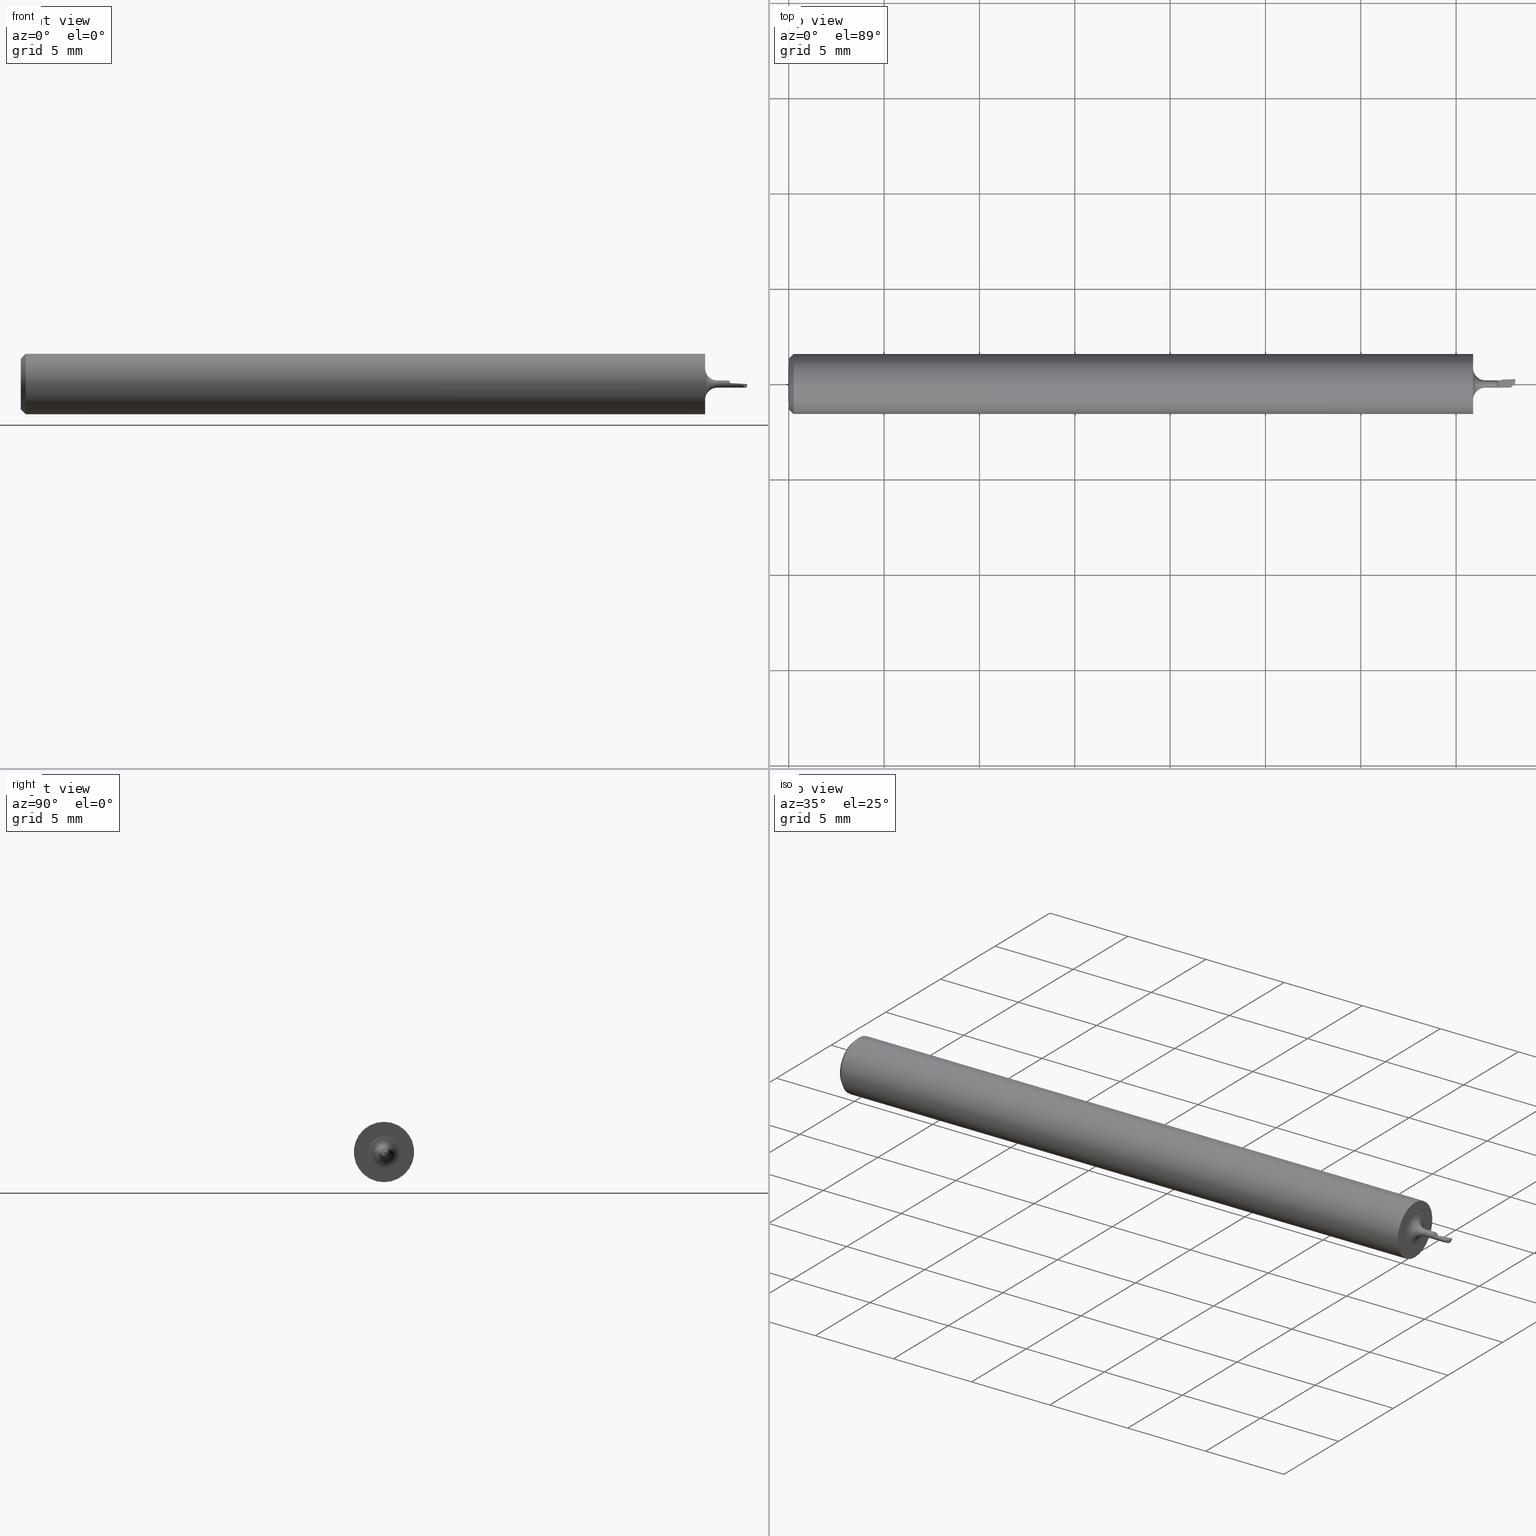
[diagram: canonical four-view strip — front | top / right | iso, engineering-drawing reading convention]
A machine part, canonical four-view strip (front | top / right | iso — engineering-drawing reading convention). The complete STEP part file that produces these views, byte-faithful:
ISO-10303-21;
HEADER;
FILE_DESCRIPTION (( 'STEP AP203' ),
    '1' );
FILE_NAME ('216294-HB020062.STEP',
    '2024-07-23T22:55:27',
    ( '' ),
    ( '' ),
    'SwSTEP 2.0',
    'SolidWorks 2024',
    '' );
FILE_SCHEMA (( 'CONFIG_CONTROL_DESIGN' ));
ENDSEC;

DATA;
#1 = PERSON_AND_ORGANIZATION ( #126, #152 ) ;
#2 = CARTESIAN_POINT ( 'NONE',  ( 1.485392324626189531, 0.009608835772461002747, -0.001031158699543181095 ) ) ;
#3 = PLANE ( 'NONE',  #57 ) ;
#4 = CARTESIAN_POINT ( 'NONE',  ( 1.465401910229241489, -0.008033876572719308301, 0.001976404837334403385 ) ) ;
#5 = CARTESIAN_POINT ( 'NONE',  ( 1.476757864376269325, -0.02164197671125470124, -0.04999999999999998890 ) ) ;
#6 = VERTEX_POINT ( 'NONE', #309 ) ;
#7 = DATE_TIME_ROLE ( 'creation_date' ) ;
#8 = AXIS2_PLACEMENT_3D ( 'NONE', #686, #363, #313 ) ;
#9 = CARTESIAN_POINT ( 'NONE',  ( 1.470000000000000417, 0.000000000000000000, 0.000000000000000000 ) ) ;
#10 = ORIENTED_EDGE ( 'NONE', *, *, #630, .F. ) ;
#11 =( BOUNDED_CURVE ( )  B_SPLINE_CURVE ( 3, ( #424, #48, #206, #263 ),
 .UNSPECIFIED., .F., .T. ) 
 B_SPLINE_CURVE_WITH_KNOTS ( ( 4, 4 ),
 ( 0.0004601367519430970762, 0.0005001029806921419591 ),
 .UNSPECIFIED. ) 
 CURVE ( )  GEOMETRIC_REPRESENTATION_ITEM ( )  RATIONAL_B_SPLINE_CURVE ( ( 0.9655502004610314604, 0.9655577982090070011, 0.9655661930841653584, 0.9655753850865065324 ) ) 
 REPRESENTATION_ITEM ( '' )  );
#12 = EDGE_CURVE ( 'NONE', #493, #339, #651, .T. ) ;
#13 = CARTESIAN_POINT ( 'NONE',  ( 1.470000000000000417, 0.007499999999999999722, 0.000000000000000000 ) ) ;
#14 = ADVANCED_FACE ( 'NONE', ( #368 ), #201, .T. ) ;
#15 = DIRECTION ( 'NONE',  ( -1.000000000000000000, -0.000000000000000000, -0.000000000000000000 ) ) ;
#16 = ORIENTED_EDGE ( 'NONE', *, *, #46, .F. ) ;
#17 = CARTESIAN_POINT ( 'NONE',  ( 1.465462116480122479, -0.007287318264388198928, 0.001773412674517008038 ) ) ;
#18 = AXIS2_PLACEMENT_3D ( 'NONE', #338, #134, #547 ) ;
#19 = AXIS2_PLACEMENT_3D ( 'NONE', #68, #583, #113 ) ;
#20 = DIRECTION ( 'NONE',  ( 0.000000000000000000, 0.000000000000000000, -1.000000000000000000 ) ) ;
#21 = ORIENTED_EDGE ( 'NONE', *, *, #521, .F. ) ;
#22 = LINE ( 'NONE', #534, #310 ) ;
#23 = CC_DESIGN_DATE_AND_TIME_ASSIGNMENT ( #639, #7, ( #584 ) ) ;
#24 = ADVANCED_FACE ( 'NONE', ( #259 ), #3, .F. ) ;
#25 = CARTESIAN_POINT ( 'NONE',  ( 1.490913009497756070, -0.007486831589767370572, 0.0004442440175002985167 ) ) ;
#26 = VERTEX_POINT ( 'NONE', #149 ) ;
#27 = CARTESIAN_POINT ( 'NONE',  ( 1.465462116480122479, -0.007287318264388198928, 0.001773412674517008038 ) ) ;
#28 = CARTESIAN_POINT ( 'NONE',  ( 1.500000000000000000, -0.03809952085550569884, -0.004440993804172945099 ) ) ;
#29 = ORIENTED_EDGE ( 'NONE', *, *, #350, .T. ) ;
#30 = VECTOR ( 'NONE', #236, 39.37007874015748143 ) ;
#31 = CARTESIAN_POINT ( 'NONE',  ( 1.455555555555555491, 0.1164702842056755949, -0.02382379700347562329 ) ) ;
#32 = AXIS2_PLACEMENT_3D ( 'NONE', #540, #290, #384 ) ;
#33 = ORIENTED_EDGE ( 'NONE', *, *, #433, .T. ) ;
#34 = EDGE_CURVE ( 'NONE', #167, #346, #171, .T. ) ;
#35 = DIRECTION ( 'NONE',  ( -0.7071067811865473507, -0.7071067811865475727, 0.000000000000000000 ) ) ;
#36 = ORIENTED_EDGE ( 'NONE', *, *, #46, .T. ) ;
#37 = DIRECTION ( 'NONE',  ( 1.000000000000000000, 0.000000000000000000, 0.000000000000000000 ) ) ;
#38 = PRODUCT_DEFINITION_SHAPE ( 'NONE', 'NONE',  #584 ) ;
#39 = CYLINDRICAL_SURFACE ( 'NONE', #469, 0.06234999999999997489 ) ;
#40 = ORIENTED_EDGE ( 'NONE', *, *, #330, .T. ) ;
#41 = CARTESIAN_POINT ( 'NONE',  ( 0.000000000000000000, 0.000000000000000000, 0.000000000000000000 ) ) ;
#42 = CARTESIAN_POINT ( 'NONE',  ( 1.470000000000000195, 0.002313938800059815466, -0.007500000000000064775 ) ) ;
#43 = CARTESIAN_POINT ( 'NONE',  ( 1.438000000000000389, 0.000000000000000000, 0.000000000000000000 ) ) ;
#44 = VECTOR ( 'NONE', #633, 39.37007874015748854 ) ;
#45 = DIRECTION ( 'NONE',  ( 0.000000000000000000, 0.000000000000000000, 1.000000000000000000 ) ) ;
#46 = EDGE_CURVE ( 'NONE', #500, #400, #11, .T. ) ;
#47 = CARTESIAN_POINT ( 'NONE',  ( 1.470000000000000195, 0.006931085055628647545, -0.004255015262047913763 ) ) ;
#48 = CARTESIAN_POINT ( 'NONE',  ( 1.470000000000000417, 0.007833377334130911182, -0.001740700570957515831 ) ) ;
#49 = EDGE_CURVE ( 'NONE', #26, #93, #581, .T. ) ;
#50 = CALENDAR_DATE ( 2024, 23, 7 ) ;
#51 = CARTESIAN_POINT ( 'NONE',  ( 1.499614030258607844, 0.008498927188251336265, -0.003018900604069763537 ) ) ;
#52 = PLANE ( 'NONE',  #65 ) ;
#53 = CARTESIAN_POINT ( 'NONE',  ( 1.475964196004432738, 0.002684687636287738481, -0.007500000000000064775 ) ) ;
#54 = ORIENTED_EDGE ( 'NONE', *, *, #507, .F. ) ;
#55 = PERSON_AND_ORGANIZATION_ROLE ( 'creator' ) ;
#56 = LOCAL_TIME ( 15, 55, 27.00000000000000000, #360 ) ;
#57 = AXIS2_PLACEMENT_3D ( 'NONE', #411, #365, #371 ) ;
#58 = FACE_OUTER_BOUND ( 'NONE', #255, .T. ) ;
#59 = ORIENTED_EDGE ( 'NONE', *, *, #480, .F. ) ;
#60 = CARTESIAN_POINT ( 'NONE',  ( 1.465819462631971160, -0.002460218353532549716, 0.0004686470636079747773 ) ) ;
#61 = CARTESIAN_POINT ( 'NONE',  ( 1.499614030258607844, 0.008498927188251336265, -0.003018900604069763537 ) ) ;
#62 = ORIENTED_EDGE ( 'NONE', *, *, #155, .F. ) ;
#63 = CARTESIAN_POINT ( 'NONE',  ( 0.01000000000000000021, 7.635672792683748212E-18, -0.06235000000000000264 ) ) ;
#64 = ORIENTED_EDGE ( 'NONE', *, *, #34, .F. ) ;
#65 = AXIS2_PLACEMENT_3D ( 'NONE', #13, #329, #176 ) ;
#66 = B_SPLINE_CURVE_WITH_KNOTS ( 'NONE', 3,
 ( #690, #367, #617, #514 ),
 .UNSPECIFIED., .F., .F.,
 ( 4, 4 ),
 ( 0.01286565071342295717, 1.000000000000000000 ),
 .UNSPECIFIED. ) ;
#67 = DESIGN_CONTEXT ( 'detailed design', #646, 'design' ) ;
#68 = CARTESIAN_POINT ( 'NONE',  ( 1.470000000000000195, 0.000000000000000000, 0.000000000000000000 ) ) ;
#69 = VERTEX_POINT ( 'NONE', #314 ) ;
#70 = ADVANCED_FACE ( 'NONE', ( #520 ), #52, .T. ) ;
#71 = FACE_OUTER_BOUND ( 'NONE', #649, .T. ) ;
#72 = ORIENTED_EDGE ( 'NONE', *, *, #190, .T. ) ;
#73 = CARTESIAN_POINT ( 'NONE',  ( 1.493085052227302922, 0.009954011561819450793, -0.0005054987647909147926 ) ) ;
#74 = FACE_OUTER_BOUND ( 'NONE', #548, .T. ) ;
#75 = ORIENTED_EDGE ( 'NONE', *, *, #190, .F. ) ;
#76 = ADVANCED_FACE ( 'NONE', ( #642 ), #120, .T. ) ;
#77 = CARTESIAN_POINT ( 'NONE',  ( 1.462228035653762026, -0.002706506877328939114, 0.007189974245801728815 ) ) ;
#78 = AXIS2_PLACEMENT_3D ( 'NONE', #671, #555, #233 ) ;
#79 = CARTESIAN_POINT ( 'NONE',  ( 1.499910995043635342, 0.001511153956110369368, -0.0001037729535355350990 ) ) ;
#80 = ORIENTED_EDGE ( 'NONE', *, *, #244, .F. ) ;
#81 = CARTESIAN_POINT ( 'NONE',  ( 1.459999999999999520, -0.005344669089070627419, 0.01199690355450601029 ) ) ;
#82 = CARTESIAN_POINT ( 'NONE',  ( 1.498399841087523887, -1.067128122525102820E-17, -0.007500000000000064775 ) ) ;
#83 = ORIENTED_EDGE ( 'NONE', *, *, #414, .T. ) ;
#84 = CARTESIAN_POINT ( 'NONE',  ( 1.461612290400543746, 0.001181759715680660459, 0.007412294273724921896 ) ) ;
#85 = DIRECTION ( 'NONE',  ( 0.1220122463319280454, 0.1220122463319280870, 0.9850005195379716305 ) ) ;
#86 = ORIENTED_EDGE ( 'NONE', *, *, #87, .F. ) ;
#87 = EDGE_CURVE ( 'NONE', #454, #173, #482, .T. ) ;
#88 = AXIS2_PLACEMENT_3D ( 'NONE', #609, #89, #348 ) ;
#89 = DIRECTION ( 'NONE',  ( 1.000000000000000000, 0.000000000000000000, 0.000000000000000000 ) ) ;
#90 = VECTOR ( 'NONE', #332, 39.37007874015748143 ) ;
#91 = VERTEX_POINT ( 'NONE', #162 ) ;
#92 = CARTESIAN_POINT ( 'NONE',  ( 0.000000000000000000, 7.635672792683743590E-18, -0.06234999999999997489 ) ) ;
#93 = VERTEX_POINT ( 'NONE', #375 ) ;
#94 = CARTESIAN_POINT ( 'NONE',  ( 1.465577171139883284, 0.007648788330625174055, -0.0003232386512158484421 ) ) ;
#95 = DIRECTION ( 'NONE',  ( -1.000000000000000000, -0.000000000000000000, -0.000000000000000000 ) ) ;
#96 = ORIENTED_EDGE ( 'NONE', *, *, #227, .F. ) ;
#97 = APPLICATION_PROTOCOL_DEFINITION ( 'international standard', 'config_control_design', 1994, #646 ) ;
#98 = EDGE_CURVE ( 'NONE', #192, #421, #388, .T. ) ;
#99 = DIRECTION ( 'NONE',  ( 0.000000000000000000, 0.000000000000000000, 1.000000000000000000 ) ) ;
#100 = CC_DESIGN_SECURITY_CLASSIFICATION ( #429, ( #676 ) ) ;
#101 = CARTESIAN_POINT ( 'NONE',  ( 1.469999999999999973, 0.008862374418960589431, -0.001945219099260210712 ) ) ;
#102 = ORIENTED_EDGE ( 'NONE', *, *, #594, .T. ) ;
#103 = PERSON_AND_ORGANIZATION_ROLE ( 'classification_officer' ) ;
#104 = CARTESIAN_POINT ( 'NONE',  ( 1.470000000000000195, 0.006931085055628647545, -0.004255015262047913763 ) ) ;
#105 = COORDINATED_UNIVERSAL_TIME_OFFSET ( 8, 0, .BEHIND. ) ;
#106 = CARTESIAN_POINT ( 'NONE',  ( 1.499937302052009036, 0.004424331407838361270, -9.657286540992938333E-05 ) ) ;
#107 = ORIENTED_EDGE ( 'NONE', *, *, #137, .F. ) ;
#108 = APPROVAL_DATE_TIME ( #567, #550 ) ;
#109 = AXIS2_PLACEMENT_3D ( 'NONE', #41, #347, #45 ) ;
#110 = DIRECTION ( 'NONE',  ( 0.000000000000000000, 0.000000000000000000, 1.000000000000000000 ) ) ;
#111 = CARTESIAN_POINT ( 'NONE',  ( 1.500000000000000222, 0.01025000000000000043, 0.000000000000000000 ) ) ;
#112 = DIRECTION ( 'NONE',  ( 1.000000000000000000, 0.000000000000000000, 0.000000000000000000 ) ) ;
#113 = DIRECTION ( 'NONE',  ( 0.000000000000000000, -3.552713678800500929E-15, -1.000000000000000000 ) ) ;
#114 = ORIENTED_EDGE ( 'NONE', *, *, #137, .T. ) ;
#115 = DIRECTION ( 'NONE',  ( -0.7071067811865476838, 0.7071067811865474617, 0.000000000000000000 ) ) ;
#116 = ADVANCED_FACE ( 'NONE', ( #74 ), #506, .T. ) ;
#117 = ORIENTED_EDGE ( 'NONE', *, *, #470, .F. ) ;
#118 = DIRECTION ( 'NONE',  ( -1.000000000000000000, -0.000000000000000000, -0.000000000000000000 ) ) ;
#119 = ORIENTED_EDGE ( 'NONE', *, *, #155, .T. ) ;
#120 = CYLINDRICAL_SURFACE ( 'NONE', #494, 0.007500000000000033550 ) ;
#121 = ORIENTED_EDGE ( 'NONE', *, *, #488, .F. ) ;
#122 = CARTESIAN_POINT ( 'NONE',  ( 1.463480798353348655, -0.005494129391781303953, 0.005369865115502046003 ) ) ;
#123 = CARTESIAN_POINT ( 'NONE',  ( 1.322222222222222854, 0.04677834125300219664, -0.1029325764629645257 ) ) ;
#124 = ORIENTED_EDGE ( 'NONE', *, *, #622, .T. ) ;
#125 = CARTESIAN_POINT ( 'NONE',  ( 1.466181130951546896, 0.002396478728146690575, -0.0007274565395656179025 ) ) ;
#126 = PERSON ( 'UNSPECIFIED', 'UNSPECIFIED', 'UNSPECIFIED', ('UNSPECIFIED'), ('UNSPECIFIED'), ('UNSPECIFIED') ) ;
#127 = CARTESIAN_POINT ( 'NONE',  ( 1.490913009497756070, -0.007486831589767370572, 0.0004442440175002985167 ) ) ;
#128 = ORIENTED_EDGE ( 'NONE', *, *, #340, .T. ) ;
#129 = LENGTH_MEASURE_WITH_UNIT ( LENGTH_MEASURE( 0.02539999999999999897 ), #407 );
#130 = LINE ( 'NONE', #551, #140 ) ;
#131 = ADVANCED_FACE ( 'NONE', ( #652 ), #389, .F. ) ;
#132 = ORIENTED_EDGE ( 'NONE', *, *, #330, .F. ) ;
#133 = CARTESIAN_POINT ( 'NONE',  ( 1.461699344662932276, -2.764668663448731705E-06, 0.007500033956675822462 ) ) ;
#134 = DIRECTION ( 'NONE',  ( -1.000000000000000000, -0.000000000000000000, -0.000000000000000000 ) ) ;
#135 = B_SPLINE_CURVE_WITH_KNOTS ( 'NONE', 3,
 ( #373, #641, #439, #73, #164, #2, #216, #231, #495, #426 ),
 .UNSPECIFIED., .F., .F.,
 ( 4, 3, 3, 4 ),
 ( 6.962584633683147816E-18, 0.0001762687547314360260, 0.0004703390477958491580, 0.0007644307739226764578 ),
 .UNSPECIFIED. ) ;
#136 = ORIENTED_EDGE ( 'NONE', *, *, #585, .T. ) ;
#137 = EDGE_CURVE ( 'NONE', #421, #203, #246, .T. ) ;
#138 = CARTESIAN_POINT ( 'NONE',  ( 1.463130191196076790, 0.006460609429123629829, 0.003816459031954702683 ) ) ;
#139 = DIMENSIONAL_EXPONENTS ( 1.000000000000000000, 0.000000000000000000, 0.000000000000000000, 0.000000000000000000, 0.000000000000000000, 0.000000000000000000, 0.000000000000000000 ) ;
#140 = VECTOR ( 'NONE', #85, 39.37007874015748143 ) ;
#141 = CARTESIAN_POINT ( 'NONE',  ( 1.366666666666667584, -0.02732453381319412122, 0.02966470309875475497 ) ) ;
#142 = EDGE_LOOP ( 'NONE', ( #200, #349, #170, #180 ) ) ;
#143 = CARTESIAN_POINT ( 'NONE',  ( 1.490913009497756070, -0.007486831589767370572, 0.0004442440175002985167 ) ) ;
#144 = CARTESIAN_POINT ( 'NONE',  ( 1.499220264841371719, 0.005482785717875401921, -0.006011376337650196564 ) ) ;
#145 = ADVANCED_FACE ( 'NONE', ( #378 ), #588, .F. ) ;
#146 = DIRECTION ( 'NONE',  ( 0.000000000000000000, 0.000000000000000000, 1.000000000000000000 ) ) ;
#147 = B_SPLINE_CURVE_WITH_KNOTS ( 'NONE', 3,
 ( #17, #274, #122, #77, #341, #218 ),
 .UNSPECIFIED., .F., .F.,
 ( 4, 2, 4 ),
 ( 0.000000000000000000, 0.2108582846577519709, 0.4217165693155039419 ),
 .UNSPECIFIED. ) ;
#148 = FACE_OUTER_BOUND ( 'NONE', #317, .T. ) ;
#149 = CARTESIAN_POINT ( 'NONE',  ( 1.413000000000000478, 0.000000000000000000, 0.03250000000000000111 ) ) ;
#150 = COORDINATED_UNIVERSAL_TIME_OFFSET ( 8, 0, .BEHIND. ) ;
#151 = CARTESIAN_POINT ( 'NONE',  ( 1.470000000000000195, 0.002313938800059815466, -0.007500000000000064775 ) ) ;
#152 = ORGANIZATION ( 'UNSPECIFIED', 'UNSPECIFIED', '' ) ;
#153 = CARTESIAN_POINT ( 'NONE',  ( 1.500000000000000222, 0.01025000000000000043, 0.000000000000000000 ) ) ;
#154 = CARTESIAN_POINT ( 'NONE',  ( 1.489999919576768139, -0.07589461500422528539, -0.07827033388365021993 ) ) ;
#155 = EDGE_CURVE ( 'NONE', #173, #621, #526, .T. ) ;
#156 = CARTESIAN_POINT ( 'NONE',  ( 1.499855164178076183, 0.009594919683456390805, -0.001132990372411467285 ) ) ;
#157 = DATE_TIME_ROLE ( 'classification_date' ) ;
#158 = CARTESIAN_POINT ( 'NONE',  ( 1.500000000000000222, 0.01025000000000000043, 0.000000000000000000 ) ) ;
#159 = ORIENTED_EDGE ( 'NONE', *, *, #659, .F. ) ;
#160 = CALENDAR_DATE ( 2024, 23, 7 ) ;
#161 = CARTESIAN_POINT ( 'NONE',  ( 1.466633238878380485, 0.008504308046681357050, -0.002083894731669192445 ) ) ;
#162 = CARTESIAN_POINT ( 'NONE',  ( 0.000000000000000000, 7.023349393110068342E-18, 0.05234999999999996600 ) ) ;
#163 = CC_DESIGN_APPROVAL ( #359, ( #676 ) ) ;
#164 = CARTESIAN_POINT ( 'NONE',  ( 1.489239127260343576, 0.009784989192643761199, -0.0007765362807769304399 ) ) ;
#165 = DIRECTION ( 'NONE',  ( 1.000000000000000000, 0.000000000000000000, -0.000000000000000000 ) ) ;
#166 = ADVANCED_FACE ( 'NONE', ( #485 ), #491, .T. ) ;
#167 = VERTEX_POINT ( 'NONE', #61 ) ;
#168 = EDGE_CURVE ( 'NONE', #406, #621, #593, .T. ) ;
#169 = DIRECTION ( 'NONE',  ( -1.000000000000000000, -0.000000000000000000, -0.000000000000000000 ) ) ;
#170 = ORIENTED_EDGE ( 'NONE', *, *, #12, .T. ) ;
#171 = B_SPLINE_CURVE_WITH_KNOTS ( 'NONE', 3,
 ( #691, #571, #618, #679, #528, #475, #156, #358, #566, #214 ),
 .UNSPECIFIED., .F., .F.,
 ( 4, 3, 3, 4 ),
 ( 0.000000000000000000, 2.229648882093421169E-05, 5.574131599296864214E-05, 8.918623473326377422E-05 ),
 .UNSPECIFIED. ) ;
#172 = DIRECTION ( 'NONE',  ( 0.000000000000000000, 0.000000000000000000, 1.000000000000000000 ) ) ;
#173 = VERTEX_POINT ( 'NONE', #63 ) ;
#174 = APPROVAL_PERSON_ORGANIZATION ( #366, #392, #473 ) ;
#175 = AXIS2_PLACEMENT_3D ( 'NONE', #634, #518, #464 ) ;
#176 = DIRECTION ( 'NONE',  ( -0.000000000000000000, 0.000000000000000000, 1.000000000000000000 ) ) ;
#177 = EDGE_LOOP ( 'NONE', ( #132, #234, #159, #221 ) ) ;
#178 = CARTESIAN_POINT ( 'NONE',  ( 1.438000000000000389, 9.184850993605228864E-19, -0.007500000000000064775 ) ) ;
#179 = CARTESIAN_POINT ( 'NONE',  ( 1.322222222222222854, 0.007549763325608993027, -0.03760714013475525280 ) ) ;
#180 = ORIENTED_EDGE ( 'NONE', *, *, #264, .F. ) ;
#181 = DIRECTION ( 'NONE',  ( -1.000000000000000000, -0.000000000000000000, -0.000000000000000000 ) ) ;
#182 = DIRECTION ( 'NONE',  ( 0.000000000000000000, -0.6414496315691530226, -0.7671651518153036475 ) ) ;
#183 = ORIENTED_EDGE ( 'NONE', *, *, #244, .T. ) ;
#184 = DIRECTION ( 'NONE',  ( -0.008726535498369596133, -0.9999619230641714207, 0.000000000000000000 ) ) ;
#185 = MANIFOLD_SOLID_BREP ( 'Front Angle', #537 ) ;
#186 = CARTESIAN_POINT ( 'NONE',  ( 1.479199920543762037, -0.01919992054376204460, -0.007500000000000064775 ) ) ;
#187 = ORIENTED_EDGE ( 'NONE', *, *, #637, .T. ) ;
#188 = CC_DESIGN_PERSON_AND_ORGANIZATION_ASSIGNMENT ( #466, #55, ( #676 ) ) ;
#189 = DIRECTION ( 'NONE',  ( 0.000000000000000000, 0.000000000000000000, 1.000000000000000000 ) ) ;
#190 = EDGE_CURVE ( 'NONE', #203, #493, #282, .T. ) ;
#191 = CARTESIAN_POINT ( 'NONE',  ( 1.466542643626486342, 0.007277478258368754761, -0.001813369846162280440 ) ) ;
#192 = VERTEX_POINT ( 'NONE', #431 ) ;
#193 = PERSON_AND_ORGANIZATION ( #126, #152 ) ;
#194 = CARTESIAN_POINT ( 'NONE',  ( 1.366666666666667140, -0.05864907454228218686, 0.1034078646039432170 ) ) ;
#195 = ORIENTED_EDGE ( 'NONE', *, *, #470, .T. ) ;
#196 = CARTESIAN_POINT ( 'NONE',  ( 1.461975344123043419, 0.004511434111019693369, 0.006110564703911905080 ) ) ;
#197 = CIRCLE ( 'NONE', #230, 0.06234999999999997489 ) ;
#198 = CARTESIAN_POINT ( 'NONE',  ( 1.470000000000000195, 0.006931085055628647545, -0.004255015262047913763 ) ) ;
#199 =( BOUNDED_CURVE ( )  B_SPLINE_CURVE ( 2, ( #143, #561, #680 ),
 .UNSPECIFIED., .F., .F. ) 
 B_SPLINE_CURVE_WITH_KNOTS ( ( 3, 3 ),
 ( 0.05295792601040268804, 0.1955746382368546699 ),
 .UNSPECIFIED. ) 
 CURVE ( )  GEOMETRIC_REPRESENTATION_ITEM ( )  RATIONAL_B_SPLINE_CURVE ( ( 0.9781178683772575599, 0.9672548631244314299, 0.9642543720173838429 ) ) 
 REPRESENTATION_ITEM ( '' )  );
#200 = ORIENTED_EDGE ( 'NONE', *, *, #585, .F. ) ;
#201 = B_SPLINE_SURFACE_WITH_KNOTS ( 'NONE', 1, 3, ( 
 ( #153, #418, #515, #415 ),
 ( #270, #563, #472, #625 ) ),
 .UNSPECIFIED., .F., .F., .F.,
 ( 2, 2 ),
 ( 4, 4 ),
 ( 0.000000000000000000, 1.000000000000000000 ),
 ( 0.000000000000000000, 1.000000000000000000 ),
 .UNSPECIFIED. ) ;
#202 = CARTESIAN_POINT ( 'NONE',  ( 1.495314523274111185, 0.003773362478853010352, -0.007500000000000069111 ) ) ;
#203 = VERTEX_POINT ( 'NONE', #279 ) ;
#204 = CARTESIAN_POINT ( 'NONE',  ( 1.463867991859787443, 0.007068999605444846457, 0.002562148954611527182 ) ) ;
#205 = CARTESIAN_POINT ( 'NONE',  ( 1.470000000000000417, 0.000000000000000000, 0.000000000000000000 ) ) ;
#206 = CARTESIAN_POINT ( 'NONE',  ( 1.470000000000000417, 0.008347796533325351973, -0.001843364884662992932 ) ) ;
#207 = APPROVAL_STATUS ( 'not_yet_approved' ) ;
#208 = ADVANCED_FACE ( 'NONE', ( #644 ), #478, .F. ) ;
#209 = CARTESIAN_POINT ( 'NONE',  ( 1.500000000000000222, 0.01025000000000000043, 0.000000000000000000 ) ) ;
#210 = VECTOR ( 'NONE', #184, 39.37007874015748854 ) ;
#211 = ORIENTED_EDGE ( 'NONE', *, *, #334, .F. ) ;
#212 = DATE_AND_TIME ( #50, #374 ) ;
#213 = LINE ( 'NONE', #104, #362 ) ;
#214 = CARTESIAN_POINT ( 'NONE',  ( 1.500000000000000222, 0.01025000000000000043, 0.000000000000000000 ) ) ;
#215 = APPROVAL_DATE_TIME ( #577, #392 ) ;
#216 = CARTESIAN_POINT ( 'NONE',  ( 1.481544914456452533, 0.009426590144501166557, -0.001270721352576692064 ) ) ;
#217 = CARTESIAN_POINT ( 'NONE',  ( 0.000000000000000000, 9.184850993605190346E-19, -0.007500000000000033550 ) ) ;
#218 = CARTESIAN_POINT ( 'NONE',  ( 1.461699344662932276, -2.764668663448731705E-06, 0.007500033956675822462 ) ) ;
#219 = ADVANCED_FACE ( 'NONE', ( #220, #71 ), #381, .T. ) ;
#220 = FACE_BOUND ( 'NONE', #595, .T. ) ;
#221 = ORIENTED_EDGE ( 'NONE', *, *, #168, .F. ) ;
#222 = CC_DESIGN_APPROVAL ( #550, ( #429 ) ) ;
#223 = DIRECTION ( 'NONE',  ( 0.000000000000000000, 0.000000000000000000, -1.000000000000000000 ) ) ;
#224 = VERTEX_POINT ( 'NONE', #228 ) ;
#225 = CARTESIAN_POINT ( 'NONE',  ( 0.000000000000000000, 0.000000000000000000, 0.06234999999999997489 ) ) ;
#226 = VERTEX_POINT ( 'NONE', #436 ) ;
#227 = EDGE_CURVE ( 'NONE', #666, #173, #612, .T. ) ;
#228 = CARTESIAN_POINT ( 'NONE',  ( 1.490913009497756070, -0.007486831589767370572, 0.0004442440175002985167 ) ) ;
#229 = ORIENTED_EDGE ( 'NONE', *, *, #315, .F. ) ;
#230 = AXIS2_PLACEMENT_3D ( 'NONE', #587, #112, #289 ) ;
#231 = CARTESIAN_POINT ( 'NONE',  ( 1.477697219876332513, 0.009244331044479201301, -0.001510301714693168280 ) ) ;
#232 = AXIS2_PLACEMENT_3D ( 'NONE', #596, #328, #335 ) ;
#233 = DIRECTION ( 'NONE',  ( -0.000000000000000000, 0.000000000000000000, 1.000000000000000000 ) ) ;
#234 = ORIENTED_EDGE ( 'NONE', *, *, #227, .T. ) ;
#235 = DIRECTION ( 'NONE',  ( -1.000000000000000000, -0.000000000000000000, -0.000000000000000000 ) ) ;
#236 = DIRECTION ( 'NONE',  ( 0.7071067811865461294, 8.659560562354950115E-17, 0.7071067811865489050 ) ) ;
#237 = ORIENTED_EDGE ( 'NONE', *, *, #594, .F. ) ;
#238 = CARTESIAN_POINT ( 'NONE',  ( 1.468273173520635355, 0.007299360978295066880, -0.001725549361645711257 ) ) ;
#239 = CC_DESIGN_PERSON_AND_ORGANIZATION_ASSIGNMENT ( #1, #103, ( #429 ) ) ;
#240 = CARTESIAN_POINT ( 'NONE',  ( 1.438000000000000389, 0.000000000000000000, 0.03250000000000000111 ) ) ;
#241 = ADVANCED_FACE ( 'NONE', ( #306 ), #300, .T. ) ;
#242 = EDGE_LOOP ( 'NONE', ( #75, #489, #229, #187, #446, #288, #552 ) ) ;
#243 = CARTESIAN_POINT ( 'NONE',  ( 0.01000000000000000021, 0.000000000000000000, 0.000000000000000000 ) ) ;
#244 = EDGE_CURVE ( 'NONE', #400, #6, #445, .T. ) ;
#245 = VECTOR ( 'NONE', #636, 39.37007874015748143 ) ;
#246 = CIRCLE ( 'NONE', #592, 0.007499999999999999722 ) ;
#247 = FACE_OUTER_BOUND ( 'NONE', #142, .T. ) ;
#248 = ORIENTED_EDGE ( 'NONE', *, *, #385, .T. ) ;
#249 = CARTESIAN_POINT ( 'NONE',  ( 1.463277590445121401, 0.006603234576248107751, 0.003562420574472624588 ) ) ;
#250 = CARTESIAN_POINT ( 'NONE',  ( 1.493797128075921687, -0.004602713011602059187, -0.007500000000000033550 ) ) ;
#251 = ORIENTED_EDGE ( 'NONE', *, *, #606, .F. ) ;
#252 = CC_DESIGN_PERSON_AND_ORGANIZATION_ASSIGNMENT ( #193, #564, ( #455 ) ) ;
#253 = CARTESIAN_POINT ( 'NONE',  ( 1.463007559593162421, 0.006322722194494099016, 0.004034845638510387369 ) ) ;
#254 = CARTESIAN_POINT ( 'NONE',  ( 1.413000000000000478, 0.000000000000000000, 0.06234999999999997489 ) ) ;
#255 = EDGE_LOOP ( 'NONE', ( #54, #275, #687 ) ) ;
#256 =( NAMED_UNIT ( * ) PLANE_ANGLE_UNIT ( ) SI_UNIT ( $, .RADIAN. ) );
#257 = AXIS2_PLACEMENT_3D ( 'NONE', #240, #453, #20 ) ;
#258 = CARTESIAN_POINT ( 'NONE',  ( 1.478946893145699049, 0.002860062907913947603, -0.007500000000000064775 ) ) ;
#259 = FACE_OUTER_BOUND ( 'NONE', #541, .T. ) ;
#260 = ADVANCED_BREP_SHAPE_REPRESENTATION ( '216294-HB020062', ( #185, #419 ), #291 ) ;
#261 = CARTESIAN_POINT ( 'NONE',  ( 0.000000000000000000, 0.000000000000000000, 0.000000000000000000 ) ) ;
#262 = CARTESIAN_POINT ( 'NONE',  ( 0.000000000000000000, 0.000000000000000000, 0.000000000000000000 ) ) ;
#263 = CARTESIAN_POINT ( 'NONE',  ( 1.469999999999999973, 0.008862374418960589431, -0.001945219099260210712 ) ) ;
#264 = EDGE_CURVE ( 'NONE', #26, #339, #386, .T. ) ;
#265 = DIRECTION ( 'NONE',  ( -1.000000000000000000, -0.000000000000000000, -0.000000000000000000 ) ) ;
#266 = VERTEX_POINT ( 'NONE', #191 ) ;
#267 = ADVANCED_FACE ( 'NONE', ( #440 ), #624, .T. ) ;
#268 = CARTESIAN_POINT ( 'NONE',  ( 1.480000105725859827, -0.08060362903013568170, -0.07372458263110276411 ) ) ;
#269 = CIRCLE ( 'NONE', #591, 0.03250000000000000111 ) ;
#270 = CARTESIAN_POINT ( 'NONE',  ( 1.500000000000000222, 0.008517949192431147759, -0.003000000000000000062 ) ) ;
#271 = B_SPLINE_CURVE_WITH_KNOTS ( 'NONE', 3,
 ( #158, #578, #106, #629 ),
 .UNSPECIFIED., .F., .F.,
 ( 4, 4 ),
 ( 2.059989395032389105E-18, 0.0002219834306652360362 ),
 .UNSPECIFIED. ) ;
#272 =( BOUNDED_CURVE ( )  B_SPLINE_CURVE ( 3, ( #127, #342, #250, #82 ),
 .UNSPECIFIED., .F., .F. ) 
 B_SPLINE_CURVE_WITH_KNOTS ( ( 4, 4 ),
 ( 6.223918080555828958, 7.853981633974482790 ),
 .UNSPECIFIED. ) 
 CURVE ( )  GEOMETRIC_REPRESENTATION_ITEM ( )  RATIONAL_B_SPLINE_CURVE ( ( 1.000000000000000000, 0.7905635122570957574, 0.7905635122570957574, 1.000000000000000000 ) ) 
 REPRESENTATION_ITEM ( '' )  );
#273 = PERSON_AND_ORGANIZATION_ROLE ( 'design_supplier' ) ;
#274 = CARTESIAN_POINT ( 'NONE',  ( 1.464348543235422628, -0.006789824056322957442, 0.003817466474374750680 ) ) ;
#275 = ORIENTED_EDGE ( 'NONE', *, *, #576, .F. ) ;
#276 = CC_DESIGN_PERSON_AND_ORGANIZATION_ASSIGNMENT ( #632, #318, ( #584 ) ) ;
#277 = EDGE_CURVE ( 'NONE', #656, #224, #422, .T. ) ;
#278 = LINE ( 'NONE', #530, #210 ) ;
#279 = CARTESIAN_POINT ( 'NONE',  ( 1.470000000000000417, 0.000000000000000000, -0.007500000000000064775 ) ) ;
#280 = ORIENTED_EDGE ( 'NONE', *, *, #659, .T. ) ;
#281 = COORDINATED_UNIVERSAL_TIME_OFFSET ( 8, 0, .BEHIND. ) ;
#282 = LINE ( 'NONE', #217, #615 ) ;
#283 = CIRCLE ( 'NONE', #568, 0.05234999999999996600 ) ;
#284 = CARTESIAN_POINT ( 'NONE',  ( 1.459999999999999964, 0.000000000000000000, -0.007500000000000064775 ) ) ;
#285 = ORIENTED_EDGE ( 'NONE', *, *, #364, .F. ) ;
#286 = ADVANCED_FACE ( 'NONE', ( #247 ), #665, .F. ) ;
#287 = CARTESIAN_POINT ( 'NONE',  ( 1.413000000000000478, 0.1123499999999999638, 0.000000000000000000 ) ) ;
#288 = ORIENTED_EDGE ( 'NONE', *, *, #630, .T. ) ;
#289 = DIRECTION ( 'NONE',  ( 0.000000000000000000, 0.000000000000000000, -1.000000000000000000 ) ) ;
#290 = DIRECTION ( 'NONE',  ( -1.000000000000000000, -0.000000000000000000, -0.000000000000000000 ) ) ;
#291 =( GEOMETRIC_REPRESENTATION_CONTEXT ( 3 ) GLOBAL_UNCERTAINTY_ASSIGNED_CONTEXT ( ( #383 ) ) GLOBAL_UNIT_ASSIGNED_CONTEXT ( ( #554, #256, #677 ) ) REPRESENTATION_CONTEXT ( 'NONE', 'WORKASPACE' ) );
#292 = CARTESIAN_POINT ( 'NONE',  ( 1.466542643626486342, 0.007277478258368754761, -0.001813369846162280440 ) ) ;
#293 = AXIS2_PLACEMENT_3D ( 'NONE', #43, #579, #461 ) ;
#294 = CARTESIAN_POINT ( 'NONE',  ( 1.496904957686418403, -0.001494883401105705743, -0.0001440997966513754460 ) ) ;
#295 = ORIENTED_EDGE ( 'NONE', *, *, #488, .T. ) ;
#296 = CARTESIAN_POINT ( 'NONE',  ( 1.470000000000000417, 0.007319118099583976807, -0.001637226391283654438 ) ) ;
#297 = EDGE_CURVE ( 'NONE', #91, #621, #499, .T. ) ;
#298 = EDGE_LOOP ( 'NONE', ( #96, #305, #387, #62 ) ) ;
#299 = CARTESIAN_POINT ( 'NONE',  ( 1.466542643626486342, 0.007277478258368754761, -0.001813369846162280440 ) ) ;
#300 = PLANE ( 'NONE',  #78 ) ;
#301 = ORIENTED_EDGE ( 'NONE', *, *, #521, .T. ) ;
#302 = CARTESIAN_POINT ( 'NONE',  ( 1.462335820666190278, 0.005448572228405944816, 0.005294964722904933058 ) ) ;
#303 = VECTOR ( 'NONE', #35, 39.37007874015748854 ) ;
#304 = CARTESIAN_POINT ( 'NONE',  ( 1.322222222222222854, -0.01599703551817907923, 0.03486245501994851559 ) ) ;
#305 = ORIENTED_EDGE ( 'NONE', *, *, #622, .F. ) ;
#306 = FACE_OUTER_BOUND ( 'NONE', #497, .T. ) ;
#307 = ORIENTED_EDGE ( 'NONE', *, *, #264, .T. ) ;
#308 = CARTESIAN_POINT ( 'NONE',  ( 1.484912633004459082, 0.003204846908544623993, -0.007500000000000064775 ) ) ;
#309 = CARTESIAN_POINT ( 'NONE',  ( 1.470000000000000195, 0.006931085055628647545, -0.004255015262047913763 ) ) ;
#310 = VECTOR ( 'NONE', #337, 39.37007874015748143 ) ;
#311 = CARTESIAN_POINT ( 'NONE',  ( 1.481929586120366737, 0.003035437934554395013, -0.007500000000000064775 ) ) ;
#312 = CC_DESIGN_DATE_AND_TIME_ASSIGNMENT ( #572, #157, ( #429 ) ) ;
#313 = DIRECTION ( 'NONE',  ( 0.000000000000000000, -1.224646799147352961E-16, 1.000000000000000000 ) ) ;
#314 = CARTESIAN_POINT ( 'NONE',  ( 1.499024250678778092, 0.003967098736823541048, -0.007500000000000064775 ) ) ;
#315 = EDGE_CURVE ( 'NONE', #224, #675, #272, .T. ) ;
#316 = CARTESIAN_POINT ( 'NONE',  ( 1.499024250678778092, 0.003967098736823541048, -0.007500000000000064775 ) ) ;
#317 = EDGE_LOOP ( 'NONE', ( #285, #523, #121, #443, #599, #607 ) ) ;
#318 = PERSON_AND_ORGANIZATION_ROLE ( 'creator' ) ;
#319 = CARTESIAN_POINT ( 'NONE',  ( 1.459999999999999076, -9.052983198338695241E-06, 0.01056486492445146003 ) ) ;
#320 = AXIS2_PLACEMENT_3D ( 'NONE', #511, #569, #562 ) ;
#321 = EDGE_LOOP ( 'NONE', ( #36, #183, #248, #117 ) ) ;
#322 = VECTOR ( 'NONE', #668, 39.37007874015748143 ) ;
#323 = APPROVAL_ROLE ( '' ) ;
#324 = DIRECTION ( 'NONE',  ( 0.000000000000000000, 0.000000000000000000, -1.000000000000000000 ) ) ;
#325 = DIRECTION ( 'NONE',  ( -0.9925083585251990304, 0.008661489226068132610, 0.1218693434051474900 ) ) ;
#326 = ORIENTED_EDGE ( 'NONE', *, *, #49, .F. ) ;
#327 = CARTESIAN_POINT ( 'NONE',  ( 1.460000000000000631, 0.01076343092411751780, 0.008040102114585348514 ) ) ;
#328 = DIRECTION ( 'NONE',  ( -1.000000000000000000, -0.000000000000000000, -0.000000000000000000 ) ) ;
#329 = DIRECTION ( 'NONE',  ( -1.000000000000000000, 0.000000000000000000, -0.000000000000000000 ) ) ;
#330 = EDGE_CURVE ( 'NONE', #666, #406, #516, .T. ) ;
#331 = AXIS2_PLACEMENT_3D ( 'NONE', #5, #115, #539 ) ;
#332 = DIRECTION ( 'NONE',  ( -1.000000000000000000, -0.000000000000000000, -0.000000000000000000 ) ) ;
#333 = ORIENTED_EDGE ( 'NONE', *, *, #501, .T. ) ;
#334 = EDGE_CURVE ( 'NONE', #226, #675, #658, .T. ) ;
#335 = DIRECTION ( 'NONE',  ( 0.000000000000000000, 0.000000000000000000, 1.000000000000000000 ) ) ;
#336 = ORIENTED_EDGE ( 'NONE', *, *, #449, .T. ) ;
#337 = DIRECTION ( 'NONE',  ( 1.000000000000000000, -0.000000000000000000, -0.000000000000000000 ) ) ;
#338 = CARTESIAN_POINT ( 'NONE',  ( 1.438000000000000389, 0.000000000000000000, 0.000000000000000000 ) ) ;
#339 = VERTEX_POINT ( 'NONE', #399 ) ;
#340 = EDGE_CURVE ( 'NONE', #226, #656, #130, .T. ) ;
#341 = CARTESIAN_POINT ( 'NONE',  ( 1.461843017836250702, -0.001228460377805647673, 0.007499548033475127162 ) ) ;
#342 = CARTESIAN_POINT ( 'NONE',  ( 1.490640379135177662, -0.007759461952346366313, -0.004150387605665341838 ) ) ;
#343 = ORIENTED_EDGE ( 'NONE', *, *, #340, .F. ) ;
#344 = CARTESIAN_POINT ( 'NONE',  ( 1.461629195857760966, 0.002346299605652875982, 0.007148529628944687818 ) ) ;
#345 = CARTESIAN_POINT ( 'NONE',  ( 1.455555555555555713, 0.03665655449768179946, -0.01682027854716317689 ) ) ;
#346 = VERTEX_POINT ( 'NONE', #209 ) ;
#347 = DIRECTION ( 'NONE',  ( -1.000000000000000000, -0.000000000000000000, -0.000000000000000000 ) ) ;
#348 = DIRECTION ( 'NONE',  ( 0.000000000000000000, 0.000000000000000000, -1.000000000000000000 ) ) ;
#349 = ORIENTED_EDGE ( 'NONE', *, *, #480, .T. ) ;
#350 = EDGE_CURVE ( 'NONE', #346, #656, #271, .T. ) ;
#351 = APPROVAL_PERSON_ORGANIZATION ( #580, #550, #323 ) ;
#352 = CARTESIAN_POINT ( 'NONE',  ( 1.500000000000000000, 0.03809952085550589312, -0.004440993804172923415 ) ) ;
#353 = ORIENTED_EDGE ( 'NONE', *, *, #484, .T. ) ;
#354 = B_SPLINE_CURVE_WITH_KNOTS ( 'NONE', 3,
 ( #316, #144, #357, #51 ),
 .UNSPECIFIED., .F., .F.,
 ( 4, 4 ),
 ( 1.793943726822849837E-06, 0.0001643649780753321380 ),
 .UNSPECIFIED. ) ;
#355 = CARTESIAN_POINT ( 'NONE',  ( 1.461640277029532253, 0.0005904057855970758998, 0.007482652165792178824 ) ) ;
#356 = ORIENTED_EDGE ( 'NONE', *, *, #501, .F. ) ;
#357 = CARTESIAN_POINT ( 'NONE',  ( 1.499416858548091591, 0.006993427330540600943, -0.004517674262841782362 ) ) ;
#358 = CARTESIAN_POINT ( 'NONE',  ( 1.499903423449231443, 0.009813594848475522617, -0.0007555067811602570035 ) ) ;
#359 = APPROVAL ( #586, 'UNSPECIFIED' ) ;
#360 = COORDINATED_UNIVERSAL_TIME_OFFSET ( 8, 0, .BEHIND. ) ;
#361 = CIRCLE ( 'NONE', #614, 0.06235000000000000264 ) ;
#362 = VECTOR ( 'NONE', #527, 39.37007874015748854 ) ;
#363 = DIRECTION ( 'NONE',  ( -0.000000000000000000, 1.000000000000000000, 1.224646799147353207E-16 ) ) ;
#364 = EDGE_CURVE ( 'NONE', #69, #167, #354, .T. ) ;
#365 = DIRECTION ( 'NONE',  ( 1.000000000000000000, 0.000000000000000000, 0.000000000000000000 ) ) ;
#366 = PERSON_AND_ORGANIZATION ( #126, #152 ) ;
#367 = CARTESIAN_POINT ( 'NONE',  ( 1.489742681348332098, 0.008011893308161889202, -0.003501397301307420697 ) ) ;
#368 = FACE_OUTER_BOUND ( 'NONE', #486, .T. ) ;
#369 = CALENDAR_DATE ( 2024, 23, 7 ) ;
#370 = CARTESIAN_POINT ( 'NONE',  ( 1.500000000000000222, -0.07083205080756796446, -0.08234999999999997877 ) ) ;
#371 = DIRECTION ( 'NONE',  ( 0.000000000000000000, 0.000000000000000000, -1.000000000000000000 ) ) ;
#372 = PERSON_AND_ORGANIZATION ( #126, #152 ) ;
#373 = CARTESIAN_POINT ( 'NONE',  ( 1.500000000000000222, 0.01025000000000000043, 0.000000000000000000 ) ) ;
#374 = LOCAL_TIME ( 15, 55, 27.00000000000000000, #150 ) ;
#375 = CARTESIAN_POINT ( 'NONE',  ( 1.413000000000000478, 3.980102097228898355E-18, -0.03250000000000000111 ) ) ;
#376 = APPROVAL_STATUS ( 'not_yet_approved' ) ;
#377 = FACE_OUTER_BOUND ( 'NONE', #509, .T. ) ;
#378 = FACE_OUTER_BOUND ( 'NONE', #683, .T. ) ;
#379 = ORIENTED_EDGE ( 'NONE', *, *, #637, .F. ) ;
#380 = ADVANCED_FACE ( 'NONE', ( #423 ), #447, .F. ) ;
#381 = PLANE ( 'NONE',  #558 ) ;
#382 = ORIENTED_EDGE ( 'NONE', *, *, #533, .F. ) ;
#383 = UNCERTAINTY_MEASURE_WITH_UNIT (LENGTH_MEASURE( 1.000000000000000082E-05 ), #554, 'distance_accuracy_value', 'NONE');
#384 = DIRECTION ( 'NONE',  ( 0.000000000000000000, 0.000000000000000000, 1.000000000000000000 ) ) ;
#385 = EDGE_CURVE ( 'NONE', #6, #192, #471, .T. ) ;
#386 = CIRCLE ( 'NONE', #257, 0.02499999999999993894 ) ;
#387 = ORIENTED_EDGE ( 'NONE', *, *, #168, .T. ) ;
#388 = CIRCLE ( 'NONE', #19, 0.007500000000000033550 ) ;
#389 = PLANE ( 'NONE',  #438 ) ;
#390 = ORIENTED_EDGE ( 'NONE', *, *, #49, .T. ) ;
#391 = CARTESIAN_POINT ( 'NONE',  ( 0.01000000000000000021, 0.000000000000000000, 0.06235000000000000264 ) ) ;
#392 = APPROVAL ( #376, 'UNSPECIFIED' ) ;
#393 = CARTESIAN_POINT ( 'NONE',  ( 1.366666666666667584, 0.01976906387438200421, -0.03515407332836805593 ) ) ;
#394 = ADVANCED_FACE ( 'NONE', ( #460 ), #39, .T. ) ;
#395 = CARTESIAN_POINT ( 'NONE',  ( 1.455555555555555491, -0.1082297157943240551, 0.04918565874005823707 ) ) ;
#396 = ORIENTED_EDGE ( 'NONE', *, *, #297, .T. ) ;
#397 = AXIS2_PLACEMENT_3D ( 'NONE', #413, #522, #620 ) ;
#398 = CARTESIAN_POINT ( 'NONE',  ( 1.461699344662932276, -2.764668663448731705E-06, 0.007500033956675822462 ) ) ;
#399 = CARTESIAN_POINT ( 'NONE',  ( 1.438000000000000389, 0.000000000000000000, 0.007500000000000064775 ) ) ;
#400 = VERTEX_POINT ( 'NONE', #101 ) ;
#401 = CYLINDRICAL_SURFACE ( 'NONE', #109, 0.007500000000000033550 ) ;
#402 = CARTESIAN_POINT ( 'NONE',  ( 1.366666666666667140, 0.08022316272981905305, -0.08773337203275979879 ) ) ;
#403 = ORIENTED_EDGE ( 'NONE', *, *, #364, .T. ) ;
#404 = CARTESIAN_POINT ( 'NONE',  ( 1.413000000000000478, 7.635672792683743590E-18, -0.06234999999999997489 ) ) ;
#405 = CARTESIAN_POINT ( 'NONE',  ( 1.455555555555555713, -0.03954248721332979249, 0.007938290938817246789 ) ) ;
#406 = VERTEX_POINT ( 'NONE', #254 ) ;
#407 =( LENGTH_UNIT ( ) NAMED_UNIT ( * ) SI_UNIT ( $, .METRE. ) );
#408 = AXIS2_PLACEMENT_3D ( 'NONE', #205, #417, #623 ) ;
#409 = B_SPLINE_SURFACE_WITH_KNOTS ( 'NONE', 1, 3, ( 
 ( #517, #420, #565, #47 ),
 ( #370, #154, #268, #574 ) ),
 .UNSPECIFIED., .F., .F., .F.,
 ( 2, 2 ),
 ( 4, 4 ),
 ( 0.000000000000000000, 1.000000000000000000 ),
 ( 0.000000000000000000, 1.000000000000000000 ),
 .UNSPECIFIED. ) ;
#410 = CARTESIAN_POINT ( 'NONE',  ( 1.470000000000000195, 0.003715341337462468602, -0.006515077800467363595 ) ) ;
#411 = CARTESIAN_POINT ( 'NONE',  ( 0.000000000000000000, 0.000000000000000000, 0.000000000000000000 ) ) ;
#412 = MECHANICAL_CONTEXT ( 'NONE', #432, 'mechanical' ) ;
#413 = CARTESIAN_POINT ( 'NONE',  ( 0.000000000000000000, 0.000000000000000000, 0.000000000000000000 ) ) ;
#414 = EDGE_CURVE ( 'NONE', #479, #69, #662, .T. ) ;
#415 = CARTESIAN_POINT ( 'NONE',  ( 1.470000000000000195, 0.009153131760376860548, -0.001597477220567129590 ) ) ;
#416 = CARTESIAN_POINT ( 'NONE',  ( 1.499910995043635342, 0.001511153956110369368, -0.0001037729535355350990 ) ) ;
#417 = DIRECTION ( 'NONE',  ( -1.000000000000000000, -0.000000000000000000, -0.000000000000000000 ) ) ;
#418 = CARTESIAN_POINT ( 'NONE',  ( 1.489999994432663621, 0.009930495904761121179, -0.0005903579551391573404 ) ) ;
#419 = AXIS2_PLACEMENT_3D ( 'NONE', #261, #146, #37 ) ;
#420 = CARTESIAN_POINT ( 'NONE',  ( 1.489999994168621278, 0.008025657390006541228, -0.003490598946340949318 ) ) ;
#421 = VERTEX_POINT ( 'NONE', #410 ) ;
#422 = B_SPLINE_CURVE_WITH_KNOTS ( 'NONE', 3,
 ( #79, #294, #508, #25 ),
 .UNSPECIFIED., .F., .F.,
 ( 4, 4 ),
 ( 3.192899116768495344E-06, 0.0003267093066677684960 ),
 .UNSPECIFIED. ) ;
#423 = FACE_OUTER_BOUND ( 'NONE', #631, .T. ) ;
#424 = CARTESIAN_POINT ( 'NONE',  ( 1.470000000000000417, 0.007319118099583976807, -0.001637226391283654438 ) ) ;
#425 = APPROVAL_DATE_TIME ( #212, #359 ) ;
#426 = CARTESIAN_POINT ( 'NONE',  ( 1.469999999999999973, 0.008862374418960589431, -0.001945219099260210712 ) ) ;
#427 = CARTESIAN_POINT ( 'NONE',  ( 0.01000000000000000021, 0.000000000000000000, -0.06235000000000000264 ) ) ;
#428 = LINE ( 'NONE', #477, #245 ) ;
#429 = SECURITY_CLASSIFICATION ( '', '', #532 ) ;
#430 = DIRECTION ( 'NONE',  ( 0.000000000000000000, -0.000000000000000000, 1.000000000000000000 ) ) ;
#431 = CARTESIAN_POINT ( 'NONE',  ( 1.470000000000000195, 0.004871384413047004022, -0.005702597118885635932 ) ) ;
#432 = APPLICATION_CONTEXT ( 'configuration controlled 3d designs of mechanical parts and assemblies' ) ;
#433 = EDGE_CURVE ( 'NONE', #167, #6, #66, .T. ) ;
#434 = DIRECTION ( 'NONE',  ( 1.000000000000000000, 0.000000000000000000, 0.000000000000000000 ) ) ;
#435 = ORIENTED_EDGE ( 'NONE', *, *, #87, .T. ) ;
#436 = CARTESIAN_POINT ( 'NONE',  ( 1.498994822658093140, 0.0005949815705692580335, -0.007500000000000073448 ) ) ;
#437 = AXIS2_PLACEMENT_3D ( 'NONE', #582, #235, #110 ) ;
#438 = AXIS2_PLACEMENT_3D ( 'NONE', #284, #430, #165 ) ;
#439 = CARTESIAN_POINT ( 'NONE',  ( 1.495390353111809789, 0.01005532591935623041, -0.0003430351102201684393 ) ) ;
#440 = FACE_OUTER_BOUND ( 'NONE', #597, .T. ) ;
#441 = ORIENTED_EDGE ( 'NONE', *, *, #553, .T. ) ;
#442 = LINE ( 'NONE', #657, #627 ) ;
#443 = ORIENTED_EDGE ( 'NONE', *, *, #98, .F. ) ;
#444 = DIRECTION ( 'NONE',  ( 0.000000000000000000, 0.000000000000000000, 1.000000000000000000 ) ) ;
#445 = LINE ( 'NONE', #543, #544 ) ;
#446 = ORIENTED_EDGE ( 'NONE', *, *, #507, .T. ) ;
#447 = TOROIDAL_SURFACE ( 'NONE', #320, 0.03250000000000000111, 0.02499999999999993894 ) ;
#448 = VECTOR ( 'NONE', #648, 39.37007874015748143 ) ;
#449 = EDGE_CURVE ( 'NONE', #91, #454, #481, .T. ) ;
#450 = CARTESIAN_POINT ( 'NONE',  ( 0.01000000000000000021, 7.635672792683746671E-18, 0.06235000000000000264 ) ) ;
#451 = ORIENTED_EDGE ( 'NONE', *, *, #484, .F. ) ;
#452 = CARTESIAN_POINT ( 'NONE',  ( 1.462931309112581735, 0.006232510451011110536, 0.004172841807856110183 ) ) ;
#453 = DIRECTION ( 'NONE',  ( 0.000000000000000000, -1.000000000000000000, 0.000000000000000000 ) ) ;
#454 = VERTEX_POINT ( 'NONE', #681 ) ;
#455 = PRODUCT ( '216294-HB020062', '216294-HB020062', '', ( #412 ) ) ;
#456 = CARTESIAN_POINT ( 'NONE',  ( 1.472981838028372348, 0.002503360802392560428, -0.007500000000000064775 ) ) ;
#457 = ORIENTED_EDGE ( 'NONE', *, *, #553, .F. ) ;
#458 = LOCAL_TIME ( 15, 55, 27.00000000000000000, #105 ) ;
#459 = ADVANCED_FACE ( 'NONE', ( #148 ), #409, .T. ) ;
#460 = FACE_OUTER_BOUND ( 'NONE', #177, .T. ) ;
#461 = DIRECTION ( 'NONE',  ( 0.000000000000000000, 0.000000000000000000, 1.000000000000000000 ) ) ;
#462 = CARTESIAN_POINT ( 'NONE',  ( 1.461684499188997899, 0.002911395437598061735, 0.006937887739840209282 ) ) ;
#463 = CARTESIAN_POINT ( 'NONE',  ( 1.487895917510212662, 0.003369853995757657664, -0.007500000000000064775 ) ) ;
#464 = DIRECTION ( 'NONE',  ( 0.000000000000000000, 0.000000000000000000, 1.000000000000000000 ) ) ;
#465 = B_SPLINE_CURVE_WITH_KNOTS ( 'NONE', 3,
 ( #133, #608, #355, #84, #513, #344, #462, #196, #302, #667, #452, #253, #138, #249, #502, #204, #510, #94, #299 ),
 .UNSPECIFIED., .F., .F.,
 ( 4, 2, 2, 2, 2, 2, 1, 2, 2, 4 ),
 ( 0.4217165693155039419, 0.4578592837332776111, 0.4940019981510512803, 0.5662874269865985077, 0.7108582846576930736, 0.7289296418665873745, 0.7470009990754815643, 0.7831437134932700550, 0.8554291423288467033, 1.000000000000000000 ),
 .UNSPECIFIED. ) ;
#466 = PERSON_AND_ORGANIZATION ( #126, #152 ) ;
#467 = DIRECTION ( 'NONE',  ( 0.000000000000000000, 0.000000000000000000, 1.000000000000000000 ) ) ;
#468 = ORIENTED_EDGE ( 'NONE', *, *, #350, .F. ) ;
#469 = AXIS2_PLACEMENT_3D ( 'NONE', #262, #95, #99 ) ;
#470 = EDGE_CURVE ( 'NONE', #500, #192, #640, .T. ) ;
#471 = LINE ( 'NONE', #198, #44 ) ;
#472 = CARTESIAN_POINT ( 'NONE',  ( 1.480000001767523665, 0.007490902732206442850, -0.003910745376156513249 ) ) ;
#473 = APPROVAL_ROLE ( '' ) ;
#474 = CARTESIAN_POINT ( 'NONE',  ( 1.459999999999999520, 0.005371203520283845262, 0.009243239471993921694 ) ) ;
#475 = CARTESIAN_POINT ( 'NONE',  ( 1.499806905039023031, 0.009376245117025526488, -0.001510472930361757369 ) ) ;
#476 = APPROVAL_ROLE ( '' ) ;
#477 = CARTESIAN_POINT ( 'NONE',  ( 1.470000000000000417, 0.007499999999999999722, -0.007500000000000064775 ) ) ;
#478 = PLANE ( 'NONE',  #331 ) ;
#479 = VERTEX_POINT ( 'NONE', #151 ) ;
#480 = EDGE_CURVE ( 'NONE', #93, #493, #525, .T. ) ;
#481 = CIRCLE ( 'NONE', #397, 0.05234999999999996600 ) ;
#482 = LINE ( 'NONE', #427, #448 ) ;
#483 = EDGE_LOOP ( 'NONE', ( #211, #128, #545, #603 ) ) ;
#484 = EDGE_CURVE ( 'NONE', #454, #91, #283, .T. ) ;
#485 = FACE_OUTER_BOUND ( 'NONE', #298, .T. ) ;
#486 = EDGE_LOOP ( 'NONE', ( #64, #33, #80, #237 ) ) ;
#487 = DIRECTION ( 'NONE',  ( 0.000000000000000000, 0.000000000000000000, -1.000000000000000000 ) ) ;
#488 = EDGE_CURVE ( 'NONE', #421, #479, #213, .T. ) ;
#489 = ORIENTED_EDGE ( 'NONE', *, *, #533, .T. ) ;
#490 = CARTESIAN_POINT ( 'NONE',  ( 1.470000000000000417, 0.007319118099583976807, -0.001637226391283654438 ) ) ;
#491 = CYLINDRICAL_SURFACE ( 'NONE', #32, 0.06234999999999997489 ) ;
#492 = AXIS2_PLACEMENT_3D ( 'NONE', #546, #654, #324 ) ;
#493 = VERTEX_POINT ( 'NONE', #178 ) ;
#494 = AXIS2_PLACEMENT_3D ( 'NONE', #638, #15, #531 ) ;
#495 = CARTESIAN_POINT ( 'NONE',  ( 1.473848846675157587, 0.009055973411064781320, -0.001734816122280209748 ) ) ;
#496 = CARTESIAN_POINT ( 'NONE',  ( 1.500000000000000222, 0.1123499999999999083, 0.01268093086829137801 ) ) ;
#497 = EDGE_LOOP ( 'NONE', ( #21, #107, #295 ) ) ;
#498 = CARTESIAN_POINT ( 'NONE',  ( 1.465810349460998419, -0.002562206417663756043, 0.0004833860876545793784 ) ) ;
#499 = LINE ( 'NONE', #450, #30 ) ;
#500 = VERTEX_POINT ( 'NONE', #490 ) ;
#501 = EDGE_CURVE ( 'NONE', #266, #500, #575, .T. ) ;
#502 = CARTESIAN_POINT ( 'NONE',  ( 1.463605412471382428, 0.006885042221979430568, 0.003003395157999809266 ) ) ;
#503 = CC_DESIGN_PERSON_AND_ORGANIZATION_ASSIGNMENT ( #684, #273, ( #676 ) ) ;
#504 = CARTESIAN_POINT ( 'NONE',  ( 1.500000000000000222, -0.1123499999999997417, 0.01268093086829131036 ) ) ;
#505 = ORIENTED_EDGE ( 'NONE', *, *, #449, .F. ) ;
#506 = CONICAL_SURFACE ( 'NONE', #689, 0.06235000000000000264, 0.7853981633974502774 ) ;
#507 = EDGE_CURVE ( 'NONE', #672, #556, #147, .T. ) ;
#508 = CARTESIAN_POINT ( 'NONE',  ( 1.493905686772675656, -0.004494154314848172044, 4.048856039252282776E-05 ) ) ;
#509 = EDGE_LOOP ( 'NONE', ( #560, #451, #435, #119 ) ) ;
#510 = CARTESIAN_POINT ( 'NONE',  ( 1.464787824137692152, 0.007506667055718140025, 0.001020490305774545857 ) ) ;
#511 = CARTESIAN_POINT ( 'NONE',  ( 1.438000000000000389, 0.000000000000000000, 0.000000000000000000 ) ) ;
#512 = ORIENTED_EDGE ( 'NONE', *, *, #606, .T. ) ;
#513 = CARTESIAN_POINT ( 'NONE',  ( 1.461608708331076478, 0.001475746535397847370, 0.007359437586331470278 ) ) ;
#514 = CARTESIAN_POINT ( 'NONE',  ( 1.470000000000000195, 0.006931085055628647545, -0.004255015262047913763 ) ) ;
#515 = CARTESIAN_POINT ( 'NONE',  ( 1.480000000625798950, 0.009559886158536057624, -0.001125226661722968091 ) ) ;
#516 = CIRCLE ( 'NONE', #88, 0.06234999999999997489 ) ;
#517 = CARTESIAN_POINT ( 'NONE',  ( 1.500000000000000222, 0.008517949192431147759, -0.003000000000000000062 ) ) ;
#518 = DIRECTION ( 'NONE',  ( -1.000000000000000000, -0.000000000000000000, -0.000000000000000000 ) ) ;
#519 = CARTESIAN_POINT ( 'NONE',  ( 0.000000000000000000, 0.000000000000000000, 0.000000000000000000 ) ) ;
#520 = FACE_OUTER_BOUND ( 'NONE', #321, .T. ) ;
#521 = EDGE_CURVE ( 'NONE', #203, #479, #428, .T. ) ;
#522 = DIRECTION ( 'NONE',  ( -1.000000000000000000, -0.000000000000000000, -0.000000000000000000 ) ) ;
#523 = ORIENTED_EDGE ( 'NONE', *, *, #414, .F. ) ;
#524 = CALENDAR_DATE ( 2024, 23, 7 ) ;
#525 = CIRCLE ( 'NONE', #8, 0.02499999999999993894 ) ;
#526 = CIRCLE ( 'NONE', #232, 0.06235000000000000264 ) ;
#527 = DIRECTION ( 'NONE',  ( 0.000000000000000000, -0.8181497174250204063, -0.5750052520432828995 ) ) ;
#528 = CARTESIAN_POINT ( 'NONE',  ( 1.499758665228453580, 0.009157255616998608017, -0.001887775693497009775 ) ) ;
#529 = CALENDAR_DATE ( 2024, 23, 7 ) ;
#530 = CARTESIAN_POINT ( 'NONE',  ( 1.498986661177813984, -0.0003402314377017216307, -0.007500000000000064775 ) ) ;
#531 = DIRECTION ( 'NONE',  ( 0.000000000000000000, 0.000000000000000000, 1.000000000000000000 ) ) ;
#532 = SECURITY_CLASSIFICATION_LEVEL ( 'unclassified' ) ;
#533 = EDGE_CURVE ( 'NONE', #203, #675, #22, .T. ) ;
#534 = CARTESIAN_POINT ( 'NONE',  ( 1.459999999999999964, 0.000000000000000000, -0.007500000000000064775 ) ) ;
#535 = CARTESIAN_POINT ( 'NONE',  ( 0.01000000000000000021, 0.000000000000000000, 0.000000000000000000 ) ) ;
#536 = LOCAL_TIME ( 15, 55, 27.00000000000000000, #281 ) ;
#537 = CLOSED_SHELL ( 'NONE', ( #286, #116, #394, #76, #70, #241, #267, #685, #166, #24, #604, #219, #380, #570, #459, #14, #131, #208, #145 ) ) ;
#538 = DIRECTION ( 'NONE',  ( 1.000000000000000000, 0.000000000000000000, 0.000000000000000000 ) ) ;
#539 = DIRECTION ( 'NONE',  ( -0.7071067811865473507, -0.7071067811865475727, 0.000000000000000000 ) ) ;
#540 = CARTESIAN_POINT ( 'NONE',  ( 0.000000000000000000, 0.000000000000000000, 0.000000000000000000 ) ) ;
#541 = EDGE_LOOP ( 'NONE', ( #353, #336 ) ) ;
#542 = DIRECTION ( 'NONE',  ( -1.000000000000000000, -0.000000000000000000, -0.000000000000000000 ) ) ;
#543 = CARTESIAN_POINT ( 'NONE',  ( 1.470000000000000195, 0.009153131760376860548, -0.001597477220567129590 ) ) ;
#544 = VECTOR ( 'NONE', #182, 39.37007874015748854 ) ;
#545 = ORIENTED_EDGE ( 'NONE', *, *, #277, .T. ) ;
#546 = CARTESIAN_POINT ( 'NONE',  ( 0.01000000000000000021, 0.000000000000000000, 0.000000000000000000 ) ) ;
#547 = DIRECTION ( 'NONE',  ( 0.000000000000000000, 0.000000000000000000, 1.000000000000000000 ) ) ;
#548 = EDGE_LOOP ( 'NONE', ( #505, #396, #280, #86 ) ) ;
#549 = CARTESIAN_POINT ( 'NONE',  ( 1.498399841087523887, -1.067128122525102820E-17, -0.007500000000000064775 ) ) ;
#550 = APPROVAL ( #207, 'UNSPECIFIED' ) ;
#551 = CARTESIAN_POINT ( 'NONE',  ( 1.493224999628413041, -0.005174841459111091495, -0.05407957584369225967 ) ) ;
#552 = ORIENTED_EDGE ( 'NONE', *, *, #12, .F. ) ;
#553 = EDGE_CURVE ( 'NONE', #69, #226, #278, .T. ) ;
#554 =( CONVERSION_BASED_UNIT ( 'INCH', #129 ) LENGTH_UNIT ( ) NAMED_UNIT ( #139 ) );
#555 = DIRECTION ( 'NONE',  ( -1.000000000000000000, 0.000000000000000000, -0.000000000000000000 ) ) ;
#556 = VERTEX_POINT ( 'NONE', #398 ) ;
#557 = CC_DESIGN_APPROVAL ( #392, ( #584 ) ) ;
#558 = AXIS2_PLACEMENT_3D ( 'NONE', #287, #434, #487 ) ;
#559 = CARTESIAN_POINT ( 'NONE',  ( 1.411111111111111427, 0.02821280918603190704, -0.02598717593776560947 ) ) ;
#560 = ORIENTED_EDGE ( 'NONE', *, *, #297, .F. ) ;
#561 = CARTESIAN_POINT ( 'NONE',  ( 1.478370743075933413, -0.007446864807924927568, 0.001117803036984761069 ) ) ;
#562 = DIRECTION ( 'NONE',  ( 0.000000000000000000, 0.000000000000000000, 1.000000000000000000 ) ) ;
#563 = CARTESIAN_POINT ( 'NONE',  ( 1.489999994168621278, 0.008025657390006541228, -0.003490598946340949318 ) ) ;
#564 = PERSON_AND_ORGANIZATION_ROLE ( 'design_owner' ) ;
#565 = CARTESIAN_POINT ( 'NONE',  ( 1.480000001767523665, 0.007490902732206442850, -0.003910745376156513249 ) ) ;
#566 = CARTESIAN_POINT ( 'NONE',  ( 1.499951702082014560, 0.01003195522787915170, -0.0003778431356813271701 ) ) ;
#567 = DATE_AND_TIME ( #529, #56 ) ;
#568 = AXIS2_PLACEMENT_3D ( 'NONE', #519, #265, #467 ) ;
#569 = DIRECTION ( 'NONE',  ( -1.000000000000000000, -0.000000000000000000, -0.000000000000000000 ) ) ;
#570 = ADVANCED_FACE ( 'NONE', ( #58 ), #670, .T. ) ;
#571 = CARTESIAN_POINT ( 'NONE',  ( 1.499646159865570150, 0.008645408287646391340, -0.002767646612325873508 ) ) ;
#572 = DATE_AND_TIME ( #160, #602 ) ;
#573 = B_SPLINE_CURVE_WITH_KNOTS ( 'NONE', 3,
 ( #292, #125, #60, #27 ),
 .UNSPECIFIED., .F., .F.,
 ( 4, 4 ),
 ( 0.000000000000000000, 1.000000000000000000 ),
 .UNSPECIFIED. ) ;
#574 = CARTESIAN_POINT ( 'NONE',  ( 1.470000000000000195, -0.08487991408192292753, -0.06878086618525817986 ) ) ;
#575 =( BOUNDED_CURVE ( )  B_SPLINE_CURVE ( 2, ( #605, #238, #296 ),
 .UNSPECIFIED., .F., .T. ) 
 B_SPLINE_CURVE_WITH_KNOTS ( ( 3, 3 ),
 ( 0.8103781752736454180, 0.8294625493666117899 ),
 .UNSPECIFIED. ) 
 CURVE ( )  GEOMETRIC_REPRESENTATION_ITEM ( )  RATIONAL_B_SPLINE_CURVE ( ( 0.9645185509280104208, 0.9649639799436656729, 0.9655502004610199140 ) ) 
 REPRESENTATION_ITEM ( '' )  );
#576 = EDGE_CURVE ( 'NONE', #266, #672, #573, .T. ) ;
#577 = DATE_AND_TIME ( #524, #536 ) ;
#578 = CARTESIAN_POINT ( 'NONE',  ( 1.499966946563276560, 0.007337546385696603474, -6.219469484776646382E-05 ) ) ;
#579 = DIRECTION ( 'NONE',  ( -1.000000000000000000, -0.000000000000000000, -0.000000000000000000 ) ) ;
#580 = PERSON_AND_ORGANIZATION ( #126, #152 ) ;
#581 = CIRCLE ( 'NONE', #175, 0.03250000000000000111 ) ;
#582 = CARTESIAN_POINT ( 'NONE',  ( 1.438000000000000389, 0.000000000000000000, 0.000000000000000000 ) ) ;
#583 = DIRECTION ( 'NONE',  ( -1.000000000000000000, -0.000000000000000000, -0.000000000000000000 ) ) ;
#584 = PRODUCT_DEFINITION ( 'UNKNOWN', '', #676, #67 ) ;
#585 = EDGE_CURVE ( 'NONE', #93, #26, #269, .T. ) ;
#586 = APPROVAL_STATUS ( 'not_yet_approved' ) ;
#587 = CARTESIAN_POINT ( 'NONE',  ( 1.413000000000000478, 0.000000000000000000, 0.000000000000000000 ) ) ;
#588 = PLANE ( 'NONE',  #628 ) ;
#589 = DIRECTION ( 'NONE',  ( 0.1218739150664907706, 0.000000000000000000, 0.9925455903012041503 ) ) ;
#590 = ORIENTED_EDGE ( 'NONE', *, *, #576, .T. ) ;
#591 = AXIS2_PLACEMENT_3D ( 'NONE', #661, #542, #444 ) ;
#592 = AXIS2_PLACEMENT_3D ( 'NONE', #9, #118, #172 ) ;
#593 = LINE ( 'NONE', #225, #90 ) ;
#594 = EDGE_CURVE ( 'NONE', #346, #400, #135, .T. ) ;
#595 = EDGE_LOOP ( 'NONE', ( #390, #136 ) ) ;
#596 = CARTESIAN_POINT ( 'NONE',  ( 0.01000000000000000021, 0.000000000000000000, 0.000000000000000000 ) ) ;
#597 = EDGE_LOOP ( 'NONE', ( #468, #102, #16, #356, #590, #379, #643 ) ) ;
#598 = CARTESIAN_POINT ( 'NONE',  ( 1.411111111111111427, 0.09834672346774733787, -0.05577858451811772145 ) ) ;
#599 = ORIENTED_EDGE ( 'NONE', *, *, #385, .F. ) ;
#600 = CARTESIAN_POINT ( 'NONE',  ( 1.466224512831127758, 0.002962934083330238076, -0.0008731287445745688092 ) ) ;
#601 = CARTESIAN_POINT ( 'NONE',  ( 1.411111111111111427, -0.03343351051326196033, 0.01880149701878600088 ) ) ;
#602 = LOCAL_TIME ( 15, 55, 27.00000000000000000, #635 ) ;
#603 = ORIENTED_EDGE ( 'NONE', *, *, #315, .T. ) ;
#604 = ADVANCED_FACE ( 'NONE', ( #377 ), #663, .T. ) ;
#605 = CARTESIAN_POINT ( 'NONE',  ( 1.466542643626486342, 0.007277478258368754761, -0.001813369846162280440 ) ) ;
#606 = EDGE_CURVE ( 'NONE', #339, #493, #650, .T. ) ;
#607 = ORIENTED_EDGE ( 'NONE', *, *, #433, .F. ) ;
#608 = CARTESIAN_POINT ( 'NONE',  ( 1.461674740113461768, 0.0002073314974721627993, 0.007500076874555785915 ) ) ;
#609 = CARTESIAN_POINT ( 'NONE',  ( 1.413000000000000478, 0.000000000000000000, 0.000000000000000000 ) ) ;
#610 = ORIENTED_EDGE ( 'NONE', *, *, #334, .T. ) ;
#611 = CARTESIAN_POINT ( 'NONE',  ( 1.465462116480122479, -0.007287318264388198928, 0.001773412674517008038 ) ) ;
#612 = LINE ( 'NONE', #92, #322 ) ;
#613 = EDGE_LOOP ( 'NONE', ( #114, #72, #251, #10, #660, #333, #195, #653 ) ) ;
#614 = AXIS2_PLACEMENT_3D ( 'NONE', #243, #616, #189 ) ;
#615 = VECTOR ( 'NONE', #169, 39.37007874015748143 ) ;
#616 = DIRECTION ( 'NONE',  ( -1.000000000000000000, -0.000000000000000000, -0.000000000000000000 ) ) ;
#617 = CARTESIAN_POINT ( 'NONE',  ( 1.479871345237649294, 0.007483700313516391915, -0.003915174632259542029 ) ) ;
#618 = CARTESIAN_POINT ( 'NONE',  ( 1.499678297969104790, 0.008791749981595436622, -0.002516312381986184152 ) ) ;
#619 = FACE_OUTER_BOUND ( 'NONE', #242, .T. ) ;
#620 = DIRECTION ( 'NONE',  ( 0.000000000000000000, 0.000000000000000000, 1.000000000000000000 ) ) ;
#621 = VERTEX_POINT ( 'NONE', #391 ) ;
#622 = EDGE_CURVE ( 'NONE', #406, #666, #197, .T. ) ;
#623 = DIRECTION ( 'NONE',  ( 0.000000000000000000, 0.000000000000000000, 1.000000000000000000 ) ) ;
#624 =( BOUNDED_SURFACE ( )  B_SPLINE_SURFACE ( 3, 2, ( 
 ( #504, #395, #664, #194, #655 ),
 ( #28, #405, #601, #141, #304 ),
 ( #352, #345, #559, #393, #179 ),
 ( #496, #31, #598, #402, #123 ) ),
 .UNSPECIFIED., .F., .F., .F. ) 
 B_SPLINE_SURFACE_WITH_KNOTS ( ( 4, 4 ),
 ( 3, 2, 3 ),
 ( 0.000000000000000000, 1.000000000000000000 ),
 ( 0.000000000000000000, 0.5000000000000000000, 1.000000000000000000 ),
 .UNSPECIFIED. ) 
 GEOMETRIC_REPRESENTATION_ITEM ( )  RATIONAL_B_SPLINE_SURFACE ( (
 ( 1.000000000000000000, 0.9510565162951535312, 1.000000000000000000, 0.9510565162951535312, 1.000000000000000000),
 ( 0.9829519941216796619, 0.9348428992147388428, 0.9829519941216796619, 0.9348428992147388428, 0.9829519941216796619),
 ( 0.9829519941216796619, 0.9348428992147388428, 0.9829519941216796619, 0.9348428992147388428, 0.9829519941216796619),
 ( 1.000000000000000000, 0.9510565162951535312, 1.000000000000000000, 0.9510565162951535312, 1.000000000000000000) ) ) 
 REPRESENTATION_ITEM ( '' )  SURFACE ( )  );
#625 = CARTESIAN_POINT ( 'NONE',  ( 1.470000000000000195, 0.006931085055628647545, -0.004255015262047913763 ) ) ;
#626 = SHAPE_DEFINITION_REPRESENTATION ( #38, #260 ) ;
#627 = VECTOR ( 'NONE', #181, 39.37007874015748143 ) ;
#628 = AXIS2_PLACEMENT_3D ( 'NONE', #111, #325, #589 ) ;
#629 = CARTESIAN_POINT ( 'NONE',  ( 1.499910995043635342, 0.001511153956110369368, -0.0001037729535355350990 ) ) ;
#630 = EDGE_CURVE ( 'NONE', #556, #339, #442, .T. ) ;
#631 = EDGE_LOOP ( 'NONE', ( #59, #326, #307, #512 ) ) ;
#632 = PERSON_AND_ORGANIZATION ( #126, #152 ) ;
#633 = DIRECTION ( 'NONE',  ( 0.000000000000000000, -0.8181497174250204063, -0.5750052520432828995 ) ) ;
#634 = CARTESIAN_POINT ( 'NONE',  ( 1.413000000000000478, 0.000000000000000000, 0.000000000000000000 ) ) ;
#635 = COORDINATED_UNIVERSAL_TIME_OFFSET ( 8, 0, .BEHIND. ) ;
#636 = DIRECTION ( 'NONE',  ( 0.000000000000000000, 1.000000000000000000, 0.000000000000000000 ) ) ;
#637 = EDGE_CURVE ( 'NONE', #224, #672, #199, .T. ) ;
#638 = CARTESIAN_POINT ( 'NONE',  ( 0.000000000000000000, 0.000000000000000000, 0.000000000000000000 ) ) ;
#639 = DATE_AND_TIME ( #369, #458 ) ;
#640 = CIRCLE ( 'NONE', #408, 0.007499999999999999722 ) ;
#641 = CARTESIAN_POINT ( 'NONE',  ( 1.497695360730988634, 0.01015407555602933741, -0.0001746640975933587620 ) ) ;
#642 = FACE_OUTER_BOUND ( 'NONE', #613, .T. ) ;
#643 = ORIENTED_EDGE ( 'NONE', *, *, #277, .F. ) ;
#644 = FACE_OUTER_BOUND ( 'NONE', #483, .T. ) ;
#645 = EDGE_LOOP ( 'NONE', ( #83, #441, #610, #382, #301 ) ) ;
#646 = APPLICATION_CONTEXT ( 'configuration controlled 3d designs of mechanical parts and assemblies' ) ;
#647 = EDGE_CURVE ( 'NONE', #556, #266, #465, .T. ) ;
#648 = DIRECTION ( 'NONE',  ( 0.7071067811865461294, 0.000000000000000000, -0.7071067811865489050 ) ) ;
#649 = EDGE_LOOP ( 'NONE', ( #124, #40 ) ) ;
#650 = CIRCLE ( 'NONE', #437, 0.007500000000000064775 ) ;
#651 = CIRCLE ( 'NONE', #293, 0.007500000000000064775 ) ;
#652 = FACE_OUTER_BOUND ( 'NONE', #645, .T. ) ;
#653 = ORIENTED_EDGE ( 'NONE', *, *, #98, .T. ) ;
#654 = DIRECTION ( 'NONE',  ( 1.000000000000000000, 0.000000000000000000, 0.000000000000000000 ) ) ;
#655 = CARTESIAN_POINT ( 'NONE',  ( 1.322222222222222854, -0.02265777738304845454, 0.1107698227485561238 ) ) ;
#656 = VERTEX_POINT ( 'NONE', #416 ) ;
#657 = CARTESIAN_POINT ( 'NONE',  ( 0.000000000000000000, 0.000000000000000000, 0.007500000000000033550 ) ) ;
#658 = LINE ( 'NONE', #186, #303 ) ;
#659 = EDGE_CURVE ( 'NONE', #621, #173, #361, .T. ) ;
#660 = ORIENTED_EDGE ( 'NONE', *, *, #647, .T. ) ;
#661 = CARTESIAN_POINT ( 'NONE',  ( 1.413000000000000478, 0.000000000000000000, 0.000000000000000000 ) ) ;
#662 = B_SPLINE_CURVE_WITH_KNOTS ( 'NONE', 3,
 ( #42, #456, #53, #258, #311, #308, #463, #678, #202, #674 ),
 .UNSPECIFIED., .F., .F.,
 ( 4, 3, 3, 4 ),
 ( 0.000000000000000000, 0.0002276740565092501083, 0.0004553476055797341343, 0.0007384138700819509789 ),
 .UNSPECIFIED. ) ;
#663 = CONICAL_SURFACE ( 'NONE', #492, 0.06235000000000000264, 0.7853981633974502774 ) ;
#664 = CARTESIAN_POINT ( 'NONE',  ( 1.411111111111111427, -0.08343939516830312098, 0.07629676167200073744 ) ) ;
#665 = TOROIDAL_SURFACE ( 'NONE', #18, 0.03250000000000000111, 0.02499999999999993894 ) ;
#666 = VERTEX_POINT ( 'NONE', #404 ) ;
#667 = CARTESIAN_POINT ( 'NONE',  ( 1.462928759187738903, 0.006231625079408294361, 0.004176107484857179662 ) ) ;
#668 = DIRECTION ( 'NONE',  ( -1.000000000000000000, -0.000000000000000000, -0.000000000000000000 ) ) ;
#669 = ORIENTED_EDGE ( 'NONE', *, *, #34, .T. ) ;
#670 = B_SPLINE_SURFACE_WITH_KNOTS ( 'NONE', 1, 3, ( 
 ( #81, #319, #474, #327 ),
 ( #4, #498, #600, #161 ) ),
 .UNSPECIFIED., .F., .F., .F.,
 ( 2, 2 ),
 ( 4, 4 ),
 ( 0.000000000000000000, 1.000000000000000000 ),
 ( 0.001227088129853698634, 0.001647619010435382066 ),
 .UNSPECIFIED. ) ;
#671 = CARTESIAN_POINT ( 'NONE',  ( 1.470000000000000417, 0.007499999999999999722, 0.000000000000000000 ) ) ;
#672 = VERTEX_POINT ( 'NONE', #611 ) ;
#673 = APPLICATION_PROTOCOL_DEFINITION ( 'international standard', 'config_control_design', 1994, #432 ) ;
#674 = CARTESIAN_POINT ( 'NONE',  ( 1.499024250678778092, 0.003967098736823541048, -0.007500000000000064775 ) ) ;
#675 = VERTEX_POINT ( 'NONE', #549 ) ;
#676 = PRODUCT_DEFINITION_FORMATION_WITH_SPECIFIED_SOURCE ( 'ANY', '', #455, .NOT_KNOWN. ) ;
#677 =( NAMED_UNIT ( * ) SI_UNIT ( $, .STERADIAN. ) SOLID_ANGLE_UNIT ( ) );
#678 = CARTESIAN_POINT ( 'NONE',  ( 1.491605031065463383, 0.003575007082134057206, -0.007500000000000064775 ) ) ;
#679 = CARTESIAN_POINT ( 'NONE',  ( 1.499710444822333288, 0.008937952006035129737, -0.002264898101628030642 ) ) ;
#680 = CARTESIAN_POINT ( 'NONE',  ( 1.465462116480122479, -0.007287318264388198928, 0.001773412674517008038 ) ) ;
#681 = CARTESIAN_POINT ( 'NONE',  ( 0.000000000000000000, 0.000000000000000000, -0.05234999999999996600 ) ) ;
#682 = PRODUCT_RELATED_PRODUCT_CATEGORY ( 'detail', '', ( #455 ) ) ;
#683 = EDGE_LOOP ( 'NONE', ( #29, #343, #457, #403, #669 ) ) ;
#684 = PERSON_AND_ORGANIZATION ( #126, #152 ) ;
#685 = ADVANCED_FACE ( 'NONE', ( #619 ), #401, .T. ) ;
#686 = CARTESIAN_POINT ( 'NONE',  ( 1.438000000000000389, 3.980102097228898355E-18, -0.03250000000000000111 ) ) ;
#687 = ORIENTED_EDGE ( 'NONE', *, *, #647, .F. ) ;
#688 = APPROVAL_PERSON_ORGANIZATION ( #372, #359, #476 ) ;
#689 = AXIS2_PLACEMENT_3D ( 'NONE', #535, #538, #223 ) ;
#690 = CARTESIAN_POINT ( 'NONE',  ( 1.499614030258607844, 0.008498927188251336265, -0.003018900604069763537 ) ) ;
#691 = CARTESIAN_POINT ( 'NONE',  ( 1.499614030258607844, 0.008498927188251336265, -0.003018900604069763537 ) ) ;
ENDSEC;
END-ISO-10303-21;
